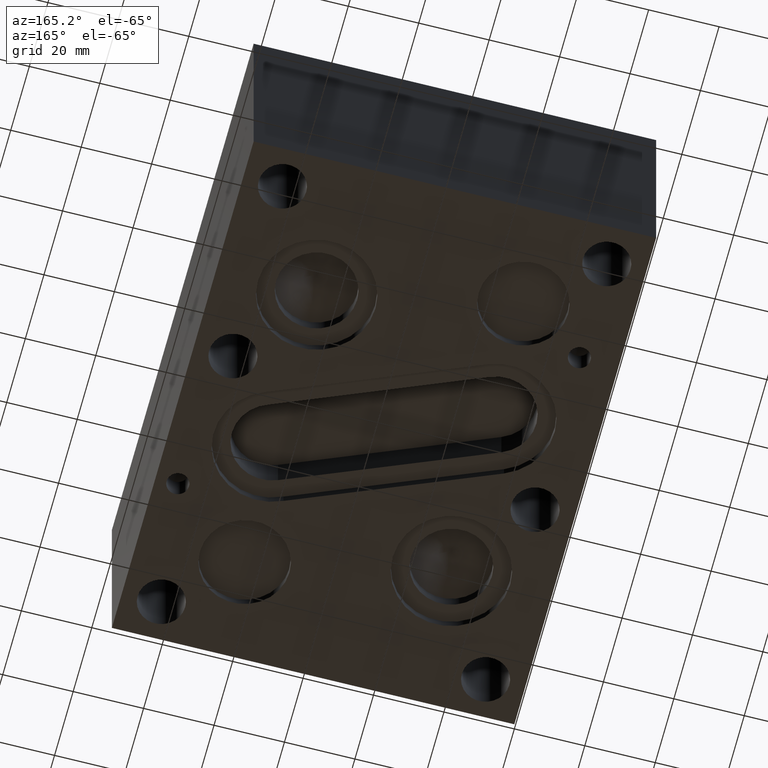
[diagram: clean part render]
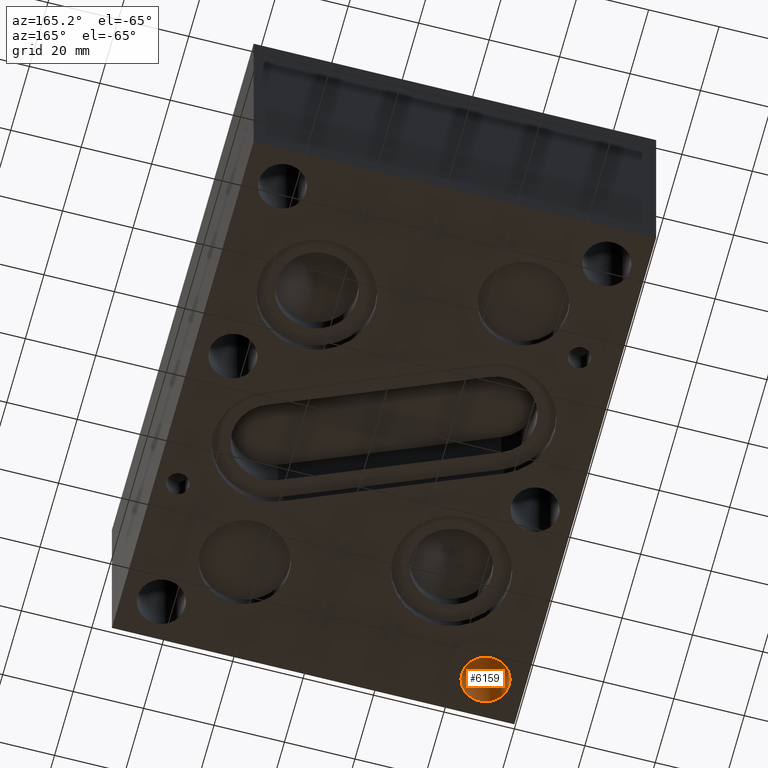
[diagram: same view with one face highlighted and labeled with its STEP entity id]
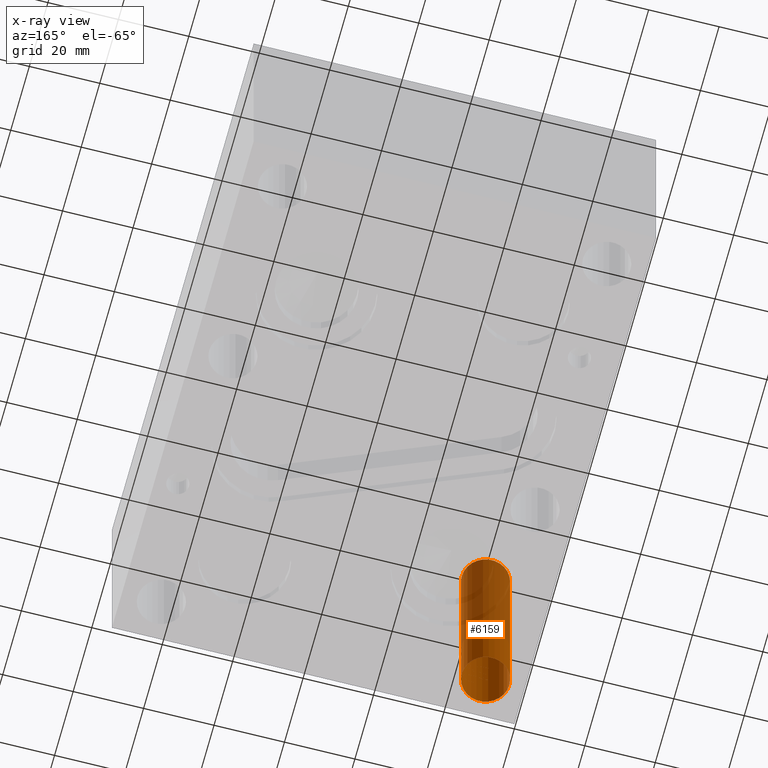
[diagram: x-ray of the same camera — body ghosted, the highlighted face saturated]
A machine part, auxiliary view. The second image highlights one B-rep face of the part: STEP entity #6159.
The next image is the same camera in x-ray: the body ghosted, the highlighted face saturated — about 52% of this face is hidden behind the body in this view.
In plain terms, the highlighted cylindrical surface (bore or boss wall) has radius 6.7437 mm, axis along (0, 0, -1).
Its self-contained STEP definition (entity closure, byte-faithful):
#616=CIRCLE('',#6210,6.7437);
#617=CIRCLE('',#6211,6.7437);
#649=CIRCLE('',#6448,6.7437);
#672=CYLINDRICAL_SURFACE('',#6447,6.7437);
#976=FACE_OUTER_BOUND('',#1326,.T.);
#1326=EDGE_LOOP('',(#5604,#5605,#5606,#5607,#5608));
#1946=LINE('',#10444,#2560);
#2560=VECTOR('',#7602,6.7437);
#2601=VERTEX_POINT('',#7732);
#2602=VERTEX_POINT('',#7733);
#3131=VERTEX_POINT('',#10443);
#3176=EDGE_CURVE('',#2601,#2602,#616,.T.);
#3177=EDGE_CURVE('',#2602,#2601,#617,.T.);
#3962=EDGE_CURVE('',#2602,#3131,#1946,.T.);
#3963=EDGE_CURVE('',#3131,#3131,#649,.T.);
#5604=ORIENTED_EDGE('',*,*,#3176,.F.);
#5605=ORIENTED_EDGE('',*,*,#3177,.F.);
#5606=ORIENTED_EDGE('',*,*,#3962,.T.);
#5607=ORIENTED_EDGE('',*,*,#3963,.F.);
#5608=ORIENTED_EDGE('',*,*,#3962,.F.);
#6159=ADVANCED_FACE('',(#976),#672,.F.);
#6210=AXIS2_PLACEMENT_3D('',#7734,#6543,#6544);
#6211=AXIS2_PLACEMENT_3D('',#7735,#6545,#6546);
#6447=AXIS2_PLACEMENT_3D('',#10442,#7600,#7601);
#6448=AXIS2_PLACEMENT_3D('',#10445,#7603,#7604);
#6543=DIRECTION('center_axis',(0.,0.,1.));
#6544=DIRECTION('ref_axis',(1.,0.,0.));
#6545=DIRECTION('center_axis',(0.,0.,1.));
#6546=DIRECTION('ref_axis',(1.,0.,0.));
#7600=DIRECTION('center_axis',(0.,0.,-1.));
#7601=DIRECTION('ref_axis',(1.,0.,0.));
#7602=DIRECTION('',(0.,0.,1.));
#7603=DIRECTION('center_axis',(0.,0.,-1.));
#7604=DIRECTION('ref_axis',(1.,0.,0.));
#7732=CARTESIAN_POINT('',(17.8562,11.0998,0.));
#7733=CARTESIAN_POINT('',(4.3688,11.0998,0.));
#7734=CARTESIAN_POINT('Origin',(11.1125,11.0998,0.));
#7735=CARTESIAN_POINT('Origin',(11.1125,11.0998,0.));
#10442=CARTESIAN_POINT('Origin',(11.1125,11.0998,200.804631420692));
#10443=CARTESIAN_POINT('',(4.3688,11.0998,63.5));
#10444=CARTESIAN_POINT('',(4.3688,11.0998,200.804631420692));
#10445=CARTESIAN_POINT('Origin',(11.1125,11.0998,63.5));